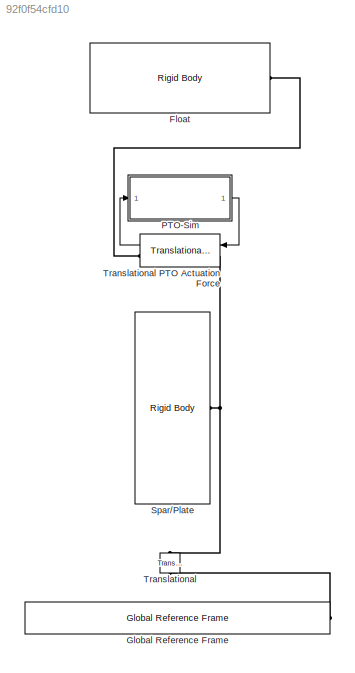
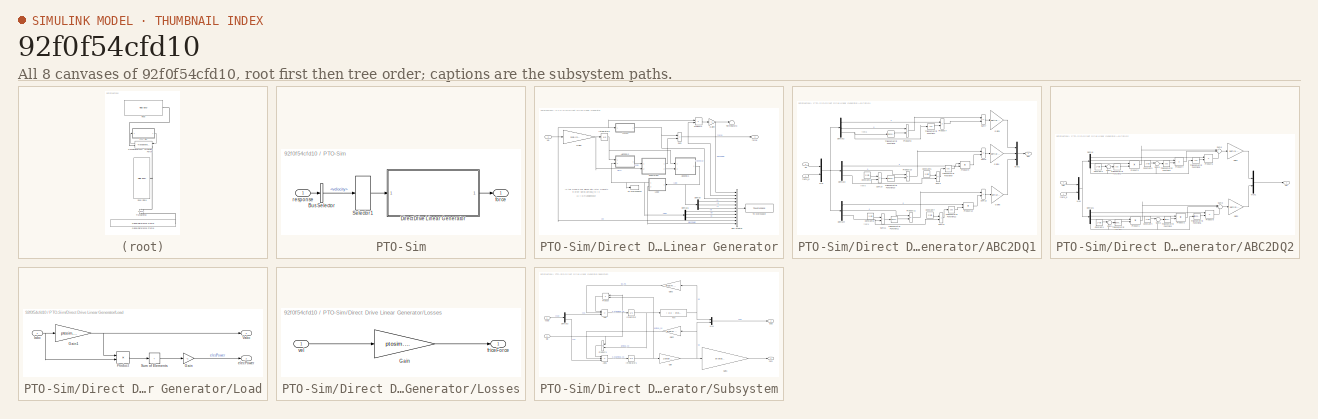
[diagram: thumbnail index - all 8 canvases of the model, root first then tree order]
MODEL slx_92f0f54cfd10
KIND model
CONFIG AbsTol = auto
CONFIG EnableMultiTasking = on
CONFIG FixedStep = 0.001
CONFIG MaxStep = 0.001
CONFIG MinStep = auto
CONFIG RelTol = 1e-3
CONFIG SampleTimeConstraint = Unconstrained
CONFIG SolverName = ode4
CONFIG StartTime = 0
CONFIG StopTime = 400
BLOCK [Reference] Float  REF=WECSim_Lib/Body Elements/Rigid Body
  AttributesFormatString = %<body>
  Ports = [0, 0, 0, 0, 0, 0, 1]
  SourceBlock = WECSim_Lib/Body Elements/Rigid Body
  SourceProductName = WEC-Sim
  SourceType = Rigid Body
BLOCK [Reference] Global Reference Frame  REF=WECSim_Lib/Frames/Global Reference Frame
  Ports = [0, 0, 0, 0, 0, 0, 1]
  SourceBlock = WECSim_Lib/Frames/Global Reference Frame
  SourceProductName = WEC-Sim
  SourceType = Frames
BLOCK [SubSystem] PTO-Sim
  NameLocation = top
  Ports = [1, 1]
  RequestExecContextInheritance = off
BLOCK [BusSelector] PTO-Sim/Bus Selector
  OutputSignals = velocity
  Ports = [1, 1]
BLOCK [SubSystem] PTO-Sim/Direct Drive Linear Generator
  AncestorBlock = PTOSim_Lib/Generator/Direct Drive Linear\nGenerator
  Ports = [1, 1]
  RequestExecContextInheritance = off
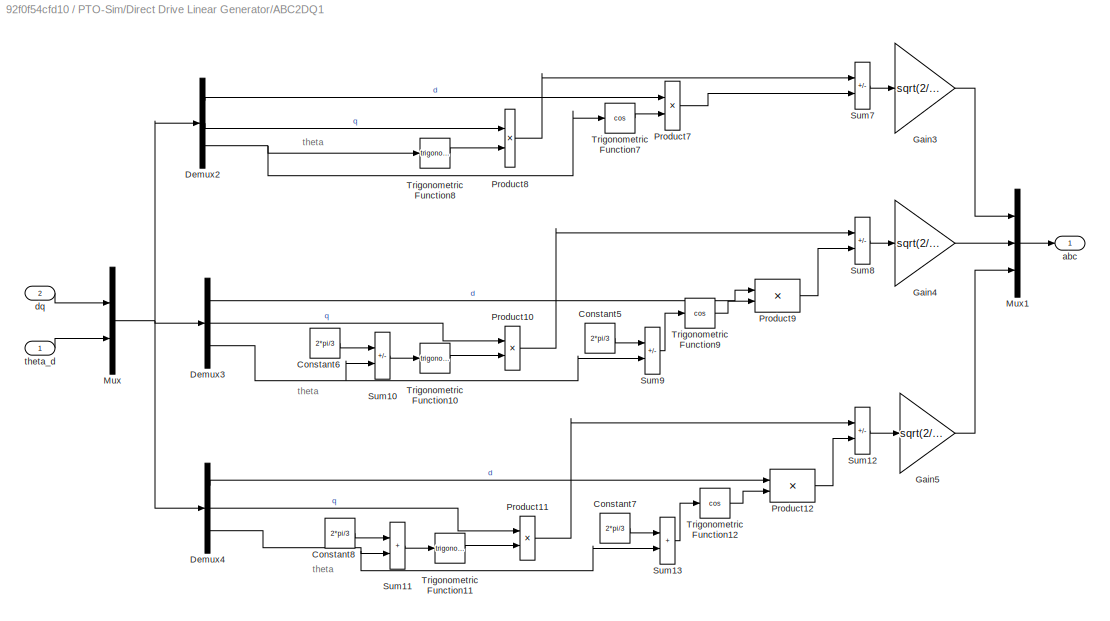
BLOCK [SubSystem] PTO-Sim/Direct Drive Linear Generator/ABC2DQ1
  Ports = [2, 1]
  RequestExecContextInheritance = off
BLOCK [Constant] PTO-Sim/Direct Drive Linear Generator/ABC2DQ1/Constant5
  Value = 2*pi/3
BLOCK [Constant] PTO-Sim/Direct Drive Linear Generator/ABC2DQ1/Constant6
  Value = 2*pi/3
BLOCK [Constant] PTO-Sim/Direct Drive Linear Generator/ABC2DQ1/Constant7
  Value = 2*pi/3
BLOCK [Constant] PTO-Sim/Direct Drive Linear Generator/ABC2DQ1/Constant8
  Value = 2*pi/3
BLOCK [Demux] PTO-Sim/Direct Drive Linear Generator/ABC2DQ1/Demux2
  DisplayOption = none
  Outputs = 3
  Ports = [1, 3]
BLOCK [Demux] PTO-Sim/Direct Drive Linear Generator/ABC2DQ1/Demux3
  DisplayOption = none
  Outputs = 3
  Ports = [1, 3]
BLOCK [Demux] PTO-Sim/Direct Drive Linear Generator/ABC2DQ1/Demux4
  DisplayOption = none
  Outputs = 3
  Ports = [1, 3]
BLOCK [Gain] PTO-Sim/Direct Drive Linear Generator/ABC2DQ1/Gain3
  Gain = sqrt(2/3)
  OutDataTypeStr = Inherit: Same as input
  ParamDataTypeStr = Inherit: Same as input
  SaturateOnIntegerOverflow = on
BLOCK [Gain] PTO-Sim/Direct Drive Linear Generator/ABC2DQ1/Gain4
  Gain = sqrt(2/3)
  OutDataTypeStr = Inherit: Same as input
  ParamDataTypeStr = Inherit: Same as input
  SaturateOnIntegerOverflow = on
BLOCK [Gain] PTO-Sim/Direct Drive Linear Generator/ABC2DQ1/Gain5
  Gain = sqrt(2/3)
  OutDataTypeStr = Inherit: Same as input
  ParamDataTypeStr = Inherit: Same as input
  SaturateOnIntegerOverflow = on
BLOCK [Mux] PTO-Sim/Direct Drive Linear Generator/ABC2DQ1/Mux
  DisplayOption = bar
  Inputs = 2
  Ports = [2, 1]
BLOCK [Mux] PTO-Sim/Direct Drive Linear Generator/ABC2DQ1/Mux1
  DisplayOption = bar
  Inputs = 3
  Ports = [3, 1]
BLOCK [Product] PTO-Sim/Direct Drive Linear Generator/ABC2DQ1/Product10
  InputSameDT = on
  OutDataTypeStr = Inherit: Same as first input
  Ports = [2, 1]
  SaturateOnIntegerOverflow = on
BLOCK [Product] PTO-Sim/Direct Drive Linear Generator/ABC2DQ1/Product11
  InputSameDT = on
  OutDataTypeStr = Inherit: Same as first input
  Ports = [2, 1]
  SaturateOnIntegerOverflow = on
BLOCK [Product] PTO-Sim/Direct Drive Linear Generator/ABC2DQ1/Product12
  InputSameDT = on
  OutDataTypeStr = Inherit: Same as first input
  Ports = [2, 1]
  SaturateOnIntegerOverflow = on
BLOCK [Product] PTO-Sim/Direct Drive Linear Generator/ABC2DQ1/Product7
  InputSameDT = on
  OutDataTypeStr = Inherit: Same as first input
  Ports = [2, 1]
  SaturateOnIntegerOverflow = on
BLOCK [Product] PTO-Sim/Direct Drive Linear Generator/ABC2DQ1/Product8
  InputSameDT = on
  OutDataTypeStr = Inherit: Same as first input
  Ports = [2, 1]
  SaturateOnIntegerOverflow = on
BLOCK [Product] PTO-Sim/Direct Drive Linear Generator/ABC2DQ1/Product9
  InputSameDT = on
  OutDataTypeStr = Inherit: Same as first input
  Ports = [2, 1]
  SaturateOnIntegerOverflow = on
BLOCK [Sum] PTO-Sim/Direct Drive Linear Generator/ABC2DQ1/Sum10
  IconShape = rectangular
  InputSameDT = on
  Inputs = -+
  OutDataTypeStr = Inherit: Same as first input
  Ports = [2, 1]
  SaturateOnIntegerOverflow = on
BLOCK [Sum] PTO-Sim/Direct Drive Linear Generator/ABC2DQ1/Sum11
  IconShape = rectangular
  InputSameDT = on
  OutDataTypeStr = Inherit: Same as first input
  Ports = [2, 1]
  SaturateOnIntegerOverflow = on
BLOCK [Sum] PTO-Sim/Direct Drive Linear Generator/ABC2DQ1/Sum12
  IconShape = rectangular
  InputSameDT = on
  Inputs = -+
  OutDataTypeStr = Inherit: Same as first input
  Ports = [2, 1]
  SaturateOnIntegerOverflow = on
BLOCK [Sum] PTO-Sim/Direct Drive Linear Generator/ABC2DQ1/Sum13
  IconShape = rectangular
  InputSameDT = on
  OutDataTypeStr = Inherit: Same as first input
  Ports = [2, 1]
  SaturateOnIntegerOverflow = on
BLOCK [Sum] PTO-Sim/Direct Drive Linear Generator/ABC2DQ1/Sum7
  IconShape = rectangular
  InputSameDT = on
  Inputs = -+
  OutDataTypeStr = Inherit: Same as first input
  Ports = [2, 1]
  SaturateOnIntegerOverflow = on
BLOCK [Sum] PTO-Sim/Direct Drive Linear Generator/ABC2DQ1/Sum8
  IconShape = rectangular
  InputSameDT = on
  Inputs = -+
  OutDataTypeStr = Inherit: Same as first input
  Ports = [2, 1]
  SaturateOnIntegerOverflow = on
BLOCK [Sum] PTO-Sim/Direct Drive Linear Generator/ABC2DQ1/Sum9
  IconShape = rectangular
  InputSameDT = on
  Inputs = -+
  OutDataTypeStr = Inherit: Same as first input
  Ports = [2, 1]
  SaturateOnIntegerOverflow = on
BLOCK [Trigonometry] PTO-Sim/Direct Drive Linear Generator/ABC2DQ1/Trigonometric Function10
  Ports = [1, 1]
BLOCK [Trigonometry] PTO-Sim/Direct Drive Linear Generator/ABC2DQ1/Trigonometric Function11
  Ports = [1, 1]
BLOCK [Trigonometry] PTO-Sim/Direct Drive Linear Generator/ABC2DQ1/Trigonometric Function12
  Operator = cos
  Ports = [1, 1]
BLOCK [Trigonometry] PTO-Sim/Direct Drive Linear Generator/ABC2DQ1/Trigonometric Function7
  Operator = cos
  Ports = [1, 1]
BLOCK [Trigonometry] PTO-Sim/Direct Drive Linear Generator/ABC2DQ1/Trigonometric Function8
  Ports = [1, 1]
BLOCK [Trigonometry] PTO-Sim/Direct Drive Linear Generator/ABC2DQ1/Trigonometric Function9
  Operator = cos
  Ports = [1, 1]
BLOCK [Outport] PTO-Sim/Direct Drive Linear Generator/ABC2DQ1/abc
BLOCK [Inport] PTO-Sim/Direct Drive Linear Generator/ABC2DQ1/dq
  Port = 2
BLOCK [Inport] PTO-Sim/Direct Drive Linear Generator/ABC2DQ1/theta_d
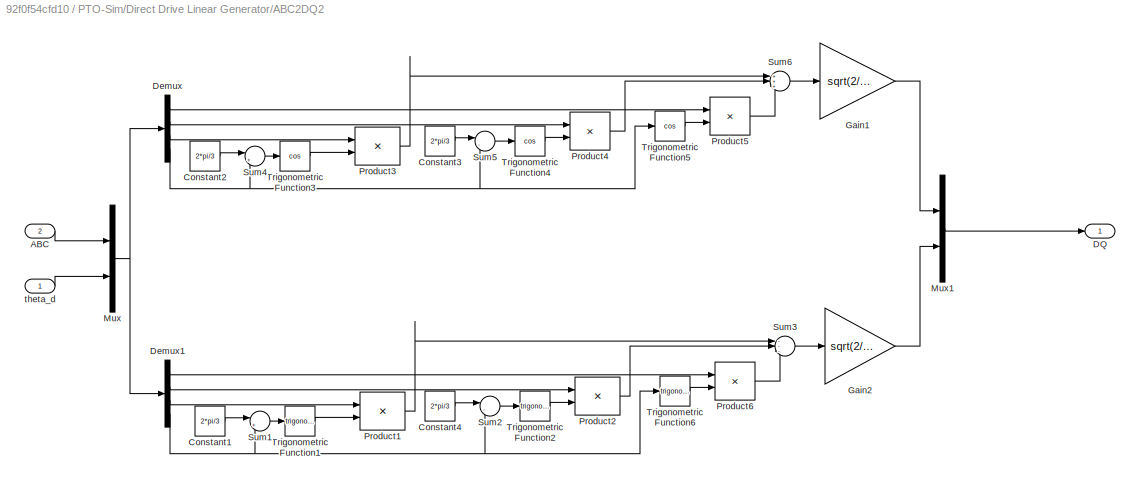
BLOCK [SubSystem] PTO-Sim/Direct Drive Linear Generator/ABC2DQ2
  Ports = [2, 1]
  RequestExecContextInheritance = off
BLOCK [Inport] PTO-Sim/Direct Drive Linear Generator/ABC2DQ2/ABC
  Port = 2
BLOCK [Constant] PTO-Sim/Direct Drive Linear Generator/ABC2DQ2/Constant1
  Value = 2*pi/3
BLOCK [Constant] PTO-Sim/Direct Drive Linear Generator/ABC2DQ2/Constant2
  Value = 2*pi/3
BLOCK [Constant] PTO-Sim/Direct Drive Linear Generator/ABC2DQ2/Constant3
  Value = 2*pi/3
BLOCK [Constant] PTO-Sim/Direct Drive Linear Generator/ABC2DQ2/Constant4
  Value = 2*pi/3
BLOCK [Outport] PTO-Sim/Direct Drive Linear Generator/ABC2DQ2/DQ
BLOCK [Demux] PTO-Sim/Direct Drive Linear Generator/ABC2DQ2/Demux
  DisplayOption = none
  Ports = [1, 4]
BLOCK [Demux] PTO-Sim/Direct Drive Linear Generator/ABC2DQ2/Demux1
  DisplayOption = none
  Ports = [1, 4]
BLOCK [Gain] PTO-Sim/Direct Drive Linear Generator/ABC2DQ2/Gain1
  Gain = sqrt(2/3)
  OutDataTypeStr = Inherit: Same as input
  ParamDataTypeStr = Inherit: Same as input
  SaturateOnIntegerOverflow = on
BLOCK [Gain] PTO-Sim/Direct Drive Linear Generator/ABC2DQ2/Gain2
  Gain = sqrt(2/3)
  OutDataTypeStr = Inherit: Same as input
  ParamDataTypeStr = Inherit: Same as input
  SaturateOnIntegerOverflow = on
BLOCK [Mux] PTO-Sim/Direct Drive Linear Generator/ABC2DQ2/Mux
  DisplayOption = bar
  Inputs = 2
  Ports = [2, 1]
BLOCK [Mux] PTO-Sim/Direct Drive Linear Generator/ABC2DQ2/Mux1
  DisplayOption = bar
  Inputs = 2
  Ports = [2, 1]
BLOCK [Product] PTO-Sim/Direct Drive Linear Generator/ABC2DQ2/Product1
  InputSameDT = on
  OutDataTypeStr = Inherit: Same as first input
  Ports = [2, 1]
  SaturateOnIntegerOverflow = on
BLOCK [Product] PTO-Sim/Direct Drive Linear Generator/ABC2DQ2/Product2
  InputSameDT = on
  OutDataTypeStr = Inherit: Same as first input
  Ports = [2, 1]
  SaturateOnIntegerOverflow = on
BLOCK [Product] PTO-Sim/Direct Drive Linear Generator/ABC2DQ2/Product3
  InputSameDT = on
  OutDataTypeStr = Inherit: Same as first input
  Ports = [2, 1]
  SaturateOnIntegerOverflow = on
BLOCK [Product] PTO-Sim/Direct Drive Linear Generator/ABC2DQ2/Product4
  InputSameDT = on
  OutDataTypeStr = Inherit: Same as first input
  Ports = [2, 1]
  SaturateOnIntegerOverflow = on
BLOCK [Product] PTO-Sim/Direct Drive Linear Generator/ABC2DQ2/Product5
  InputSameDT = on
  OutDataTypeStr = Inherit: Same as first input
  Ports = [2, 1]
  SaturateOnIntegerOverflow = on
BLOCK [Product] PTO-Sim/Direct Drive Linear Generator/ABC2DQ2/Product6
  InputSameDT = on
  OutDataTypeStr = Inherit: Same as first input
  Ports = [2, 1]
  SaturateOnIntegerOverflow = on
BLOCK [Sum] PTO-Sim/Direct Drive Linear Generator/ABC2DQ2/Sum1
  InputSameDT = on
  Inputs = |++
  OutDataTypeStr = Inherit: Same as first input
  Ports = [2, 1]
  SaturateOnIntegerOverflow = on
BLOCK [Sum] PTO-Sim/Direct Drive Linear Generator/ABC2DQ2/Sum2
  InputSameDT = on
  Inputs = |-+
  OutDataTypeStr = Inherit: Same as first input
  Ports = [2, 1]
  SaturateOnIntegerOverflow = on
BLOCK [Sum] PTO-Sim/Direct Drive Linear Generator/ABC2DQ2/Sum3
  InputSameDT = on
  Inputs = ---
  OutDataTypeStr = Inherit: Same as first input
  Ports = [3, 1]
  SaturateOnIntegerOverflow = on
BLOCK [Sum] PTO-Sim/Direct Drive Linear Generator/ABC2DQ2/Sum4
  InputSameDT = on
  Inputs = |++
  OutDataTypeStr = Inherit: Same as first input
  Ports = [2, 1]
  SaturateOnIntegerOverflow = on
BLOCK [Sum] PTO-Sim/Direct Drive Linear Generator/ABC2DQ2/Sum5
  InputSameDT = on
  Inputs = |-+
  OutDataTypeStr = Inherit: Same as first input
  Ports = [2, 1]
  SaturateOnIntegerOverflow = on
BLOCK [Sum] PTO-Sim/Direct Drive Linear Generator/ABC2DQ2/Sum6
  InputSameDT = on
  Inputs = +++
  OutDataTypeStr = Inherit: Same as first input
  Ports = [3, 1]
  SaturateOnIntegerOverflow = on
BLOCK [Trigonometry] PTO-Sim/Direct Drive Linear Generator/ABC2DQ2/Trigonometric Function1
  Ports = [1, 1]
BLOCK [Trigonometry] PTO-Sim/Direct Drive Linear Generator/ABC2DQ2/Trigonometric Function2
  Ports = [1, 1]
BLOCK [Trigonometry] PTO-Sim/Direct Drive Linear Generator/ABC2DQ2/Trigonometric Function3
  Operator = cos
  Ports = [1, 1]
BLOCK [Trigonometry] PTO-Sim/Direct Drive Linear Generator/ABC2DQ2/Trigonometric Function4
  Operator = cos
  Ports = [1, 1]
BLOCK [Trigonometry] PTO-Sim/Direct Drive Linear Generator/ABC2DQ2/Trigonometric Function5
  Operator = cos
  Ports = [1, 1]
BLOCK [Trigonometry] PTO-Sim/Direct Drive Linear Generator/ABC2DQ2/Trigonometric Function6
  Ports = [1, 1]
BLOCK [Inport] PTO-Sim/Direct Drive Linear Generator/ABC2DQ2/theta_d
BLOCK [BusCreator] PTO-Sim/Direct Drive Linear Generator/Bus Creator
  DisplayOption = bar
  InheritFromInputs = on
  Inputs = 11
  Ports = [11, 1]
BLOCK [Demux] PTO-Sim/Direct Drive Linear Generator/Demux
  Outputs = 3
  Ports = [1, 3]
BLOCK [Demux] PTO-Sim/Direct Drive Linear Generator/Demux1
  Outputs = 3
  Ports = [1, 3]
BLOCK [Gain] PTO-Sim/Direct Drive Linear Generator/Gain4
  Gain = -1
BLOCK [Gain] PTO-Sim/Direct Drive Linear Generator/Gain5
  Gain = 2*pi/(2*ptosim.tau_p)
BLOCK [Integrator] PTO-Sim/Direct Drive Linear Generator/Integrator2
  InitialCondition = ptosim.theta_d_0
  Ports = [1, 1]
BLOCK [SubSystem] PTO-Sim/Direct Drive Linear Generator/Load
  Ports = [1, 2]
  RequestExecContextInheritance = off
BLOCK [Gain] PTO-Sim/Direct Drive Linear Generator/Load/Gain
  Gain = -1
BLOCK [Gain] PTO-Sim/Direct Drive Linear Generator/Load/Gain1
  Gain = ptosim.Rload
BLOCK [Inport] PTO-Sim/Direct Drive Linear Generator/Load/Iabc
BLOCK [Product] PTO-Sim/Direct Drive Linear Generator/Load/Product
  Ports = [2, 1]
BLOCK [Sum] PTO-Sim/Direct Drive Linear Generator/Load/Sum of Elements
  IconShape = rectangular
  Inputs = +
  Ports = [1, 1]
BLOCK [Outport] PTO-Sim/Direct Drive Linear Generator/Load/Vabc
BLOCK [Outport] PTO-Sim/Direct Drive Linear Generator/Load/elecPower
  Port = 2
BLOCK [SubSystem] PTO-Sim/Direct Drive Linear Generator/Losses
  Ports = [1, 1]
  RequestExecContextInheritance = off
BLOCK [Gain] PTO-Sim/Direct Drive Linear Generator/Losses/Gain
  Gain = ptosim.Bfric
BLOCK [Outport] PTO-Sim/Direct Drive Linear Generator/Losses/friceForce
BLOCK [Inport] PTO-Sim/Direct Drive Linear Generator/Losses/vel
BLOCK [Product] PTO-Sim/Direct Drive Linear Generator/Product1
  Ports = [2, 1]
BLOCK [SubSystem] PTO-Sim/Direct Drive Linear Generator/Subsystem
  Ports = [2, 2]
  RequestExecContextInheritance = off
BLOCK [Sum] PTO-Sim/Direct Drive Linear Generator/Subsystem/Add
  IconShape = rectangular
  Inputs = +-+
  Ports = [3, 1]
BLOCK [Sum] PTO-Sim/Direct Drive Linear Generator/Subsystem/Add1
  IconShape = rectangular
  Inputs = --+
  Ports = [3, 1]
BLOCK [Demux] PTO-Sim/Direct Drive Linear Generator/Subsystem/Demux2
  DisplayOption = none
  Outputs = 2
  Ports = [1, 2]
BLOCK [Fcn] PTO-Sim/Direct Drive Linear Generator/Subsystem/Fcn
  Expr = ( u(1) - ptosim.lambda_fd ) / ptosim.Ls
BLOCK [Outport] PTO-Sim/Direct Drive Linear Generator/Subsystem/Fem
BLOCK [Gain] PTO-Sim/Direct Drive Linear Generator/Subsystem/Gain
  Gain = 1/ptosim.Ls
BLOCK [Gain] PTO-Sim/Direct Drive Linear Generator/Subsystem/Gain1
  Gain = pi/ptosim.tau_p*ptosim.lambda_fd
BLOCK [Gain] PTO-Sim/Direct Drive Linear Generator/Subsystem/Gain2
  Gain = ptosim.Rs
BLOCK [Gain] PTO-Sim/Direct Drive Linear Generator/Subsystem/Gain3
  Gain = ptosim.Rs
BLOCK [Integrator] PTO-Sim/Direct Drive Linear Generator/Subsystem/Integrator
  InitialCondition = ptosim.lambda_sd_0
  Ports = [1, 1]
BLOCK [Integrator] PTO-Sim/Direct Drive Linear Generator/Subsystem/Integrator1
  InitialCondition = ptosim.lambda_sq_0
  Ports = [1, 1]
BLOCK [Mux] PTO-Sim/Direct Drive Linear Generator/Subsystem/Mux
  DisplayOption = bar
  Inputs = 2
  Ports = [2, 1]
BLOCK [Product] PTO-Sim/Direct Drive Linear Generator/Subsystem/Product
  Ports = [2, 1]
  RndMeth = Zero
BLOCK [Product] PTO-Sim/Direct Drive Linear Generator/Subsystem/Product1
  Ports = [2, 1]
  RndMeth = Zero
BLOCK [Outport] PTO-Sim/Direct Drive Linear Generator/Subsystem/isdq
  Port = 2
BLOCK [Inport] PTO-Sim/Direct Drive Linear Generator/Subsystem/vsdq
BLOCK [Inport] PTO-Sim/Direct Drive Linear Generator/Subsystem/wd
  Port = 2
BLOCK [Sum] PTO-Sim/Direct Drive Linear Generator/Sum
  IconShape = rectangular
  Ports = [2, 1]
BLOCK [Terminator] PTO-Sim/Direct Drive Linear Generator/Terminator3
BLOCK [ToWorkspace] PTO-Sim/Direct Drive Linear Generator/To Workspace
  Decimation = round(simu.dtOut/simu.dt,0)
  FixptAsFi = on
  MaxDataPoints = inf
  Ports = [1]
  SampleTime = -1
  SaveFormat = Structure With Time
  VariableName = pmLinearGenerator1_out
BLOCK [ToWorkspace] PTO-Sim/Direct Drive Linear Generator/To Workspace1
  FixptAsFi = on
  MaxDataPoints = inf
  Ports = [1]
  SampleTime = -1
  SaveFormat = Timeseries
  VariableName = vabc
BLOCK [Outport] PTO-Sim/Direct Drive Linear Generator/force
BLOCK [Inport] PTO-Sim/Direct Drive Linear Generator/vel
BLOCK [Selector] PTO-Sim/Selector1
  IndexOptions = Index vector (dialog)
  Indices = 3
  InputPortWidth = 6
  OutputSizes = 1
  Ports = [1, 1]
BLOCK [Outport] PTO-Sim/force
  VectorParamsAs1DForOutWhenUnconnected = off
BLOCK [Inport] PTO-Sim/response
BLOCK [Reference] Spar//Plate  REF=WECSim_Lib/Body Elements/Rigid Body
  AttributesFormatString = %<body>
  Ports = [0, 0, 0, 0, 0, 0, 1]
  SourceBlock = WECSim_Lib/Body Elements/Rigid Body
  SourceProductName = WEC-Sim
  SourceType = Rigid Body
BLOCK [Reference] Translational  REF=WECSim_Lib/Constraints/Translational
  AttributesFormatString = %<constraint>
  NameLocation = right
  Ports = [0, 0, 0, 0, 0, 1, 1]
  SourceBlock = WECSim_Lib/Constraints/Translational
  SourceProductName = WEC-Sim
  SourceType = Constraints
BLOCK [Reference] Translational PTO Actuation Force  REF=WECSim_Lib/PTOs/Translational PTO
Actuation Force
  AttributesFormatString = %<pto>
  Ports = [1, 1, 0, 0, 0, 1, 1]
  SourceBlock = WECSim_Lib/PTOs/Translational PTO\nActuation Force
  SourceProductName = WEC-Sim
  SourceType = PTO
ANNOTATION PTO-Sim/Direct Drive Linear Generator: In this model d-axis aligned with rotor magnets in other words lambda_fq = 0
ANNOTATION PTO-Sim/Direct Drive Linear Generator: Ls = 3/2*Lsinglephase
ANNOTATION PTO-Sim/Direct Drive Linear Generator/ABC2DQ1: theta
LINE PTO-Sim/Bus Selector:1 -> PTO-Sim/Selector1:1
LINE PTO-Sim/Direct Drive Linear Generator:1 -> PTO-Sim/force:1
LINE PTO-Sim/Selector1:1 -> PTO-Sim/Direct Drive Linear Generator:1
LINE PTO-Sim/response:1 -> PTO-Sim/Bus Selector:1
LINE PTO-Sim:1 -> Translational PTO Actuation Force:1
LINE Translational PTO Actuation Force:1 -> PTO-Sim:1
PLINE Float:RConn1 -- Translational PTO Actuation Force:RConn1
PLINE Global Reference Frame:RConn1 -- Translational:LConn1
PNET net1: Spar//Plate:RConn1 -- Translational PTO Actuation Force:LConn1 -- Translational:RConn1
note: PNET lines group multi-terminal physical nets as a canonical sorted terminal list (undirected conserving connections); 2-terminal nets keep the pairwise PLINE form
